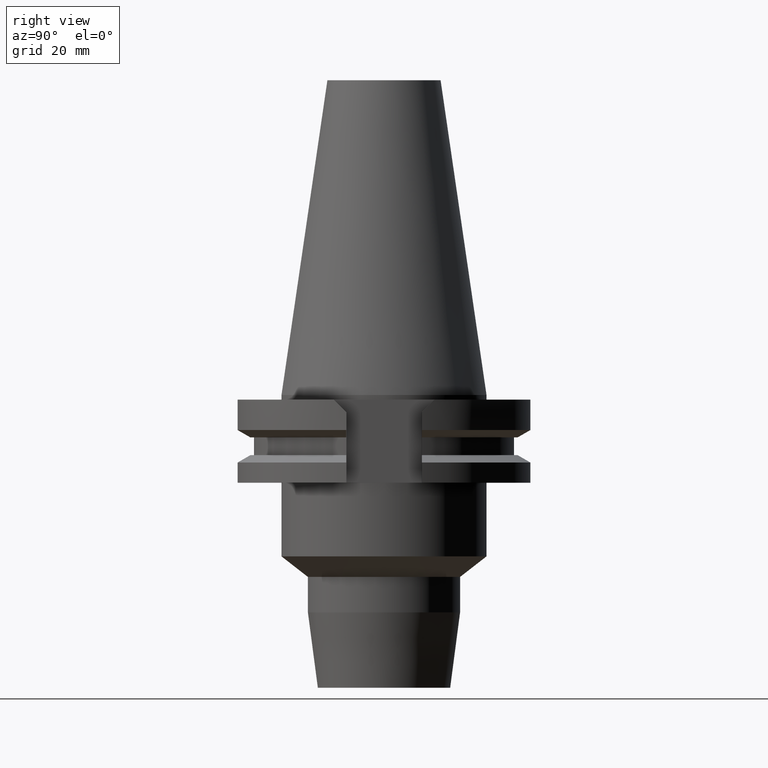
[diagram: clean part render]
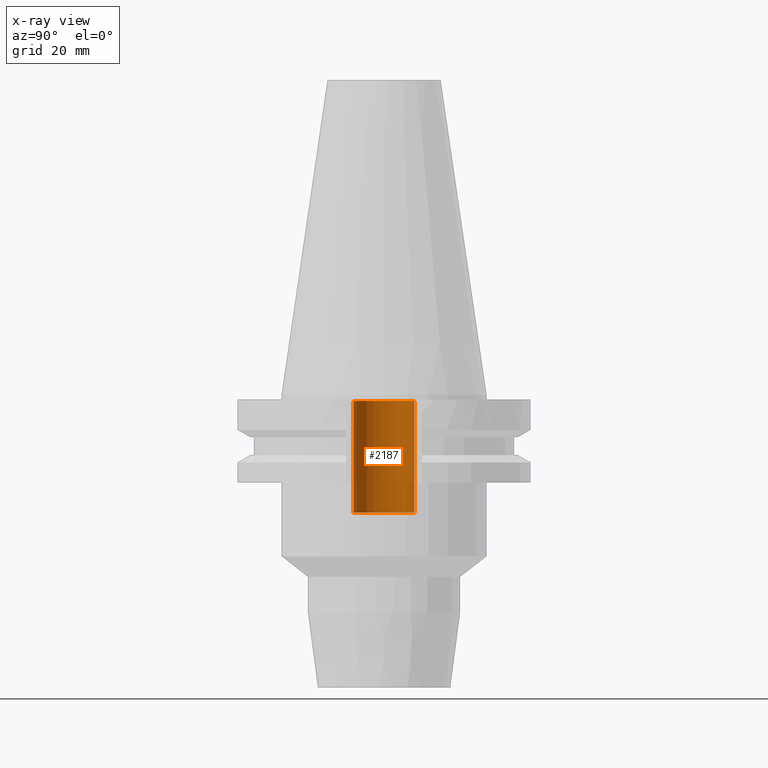
[diagram: x-ray — body ghosted, one internal face saturated and labeled with its STEP entity id]
A machine part, right view, then the same camera in x-ray: the body is ghosted and one INTERNAL B-rep face — a face not visible from any outside direction — is saturated and labeled: STEP entity #2187.
In plain terms, the highlighted cylindrical surface (edge-blend (fillet) strip) has radius 6.6 mm, axis along (0, 0, 1).
Its self-contained STEP definition (entity closure, byte-faithful):
#966=CARTESIAN_POINT('',(0.E0,0.E0,-2.55E1));
#967=DIRECTION('',(0.E0,0.E0,-1.E0));
#968=DIRECTION('',(0.E0,-1.E0,0.E0));
#969=AXIS2_PLACEMENT_3D('',#966,#967,#968);
#998=DIRECTION('',(0.E0,0.E0,1.E0));
#999=VECTOR('',#998,2.42E1);
#1000=CARTESIAN_POINT('',(0.E0,-6.6E0,-2.55E1));
#1001=LINE('',#1000,#999);
#1005=DIRECTION('',(0.E0,0.E0,1.E0));
#1006=VECTOR('',#1005,2.42E1);
#1007=CARTESIAN_POINT('',(0.E0,6.6E0,-2.55E1));
#1008=LINE('',#1007,#1006);
#1020=CARTESIAN_POINT('',(0.E0,0.E0,-1.3E0));
#1021=DIRECTION('',(0.E0,0.E0,1.E0));
#1022=DIRECTION('',(0.E0,1.E0,0.E0));
#1023=AXIS2_PLACEMENT_3D('',#1020,#1021,#1022);
#1296=CARTESIAN_POINT('',(0.E0,-6.6E0,-2.55E1));
#1297=CARTESIAN_POINT('',(0.E0,6.6E0,-2.55E1));
#1298=VERTEX_POINT('',#1296);
#1299=VERTEX_POINT('',#1297);
#1300=CARTESIAN_POINT('',(0.E0,6.6E0,-1.3E0));
#1301=VERTEX_POINT('',#1300);
#1302=CARTESIAN_POINT('',(0.E0,-6.6E0,-1.3E0));
#1303=VERTEX_POINT('',#1302);
#2173=CARTESIAN_POINT('',(0.E0,0.E0,-7.00875E1));
#2174=DIRECTION('',(0.E0,0.E0,1.E0));
#2175=DIRECTION('',(0.E0,1.E0,0.E0));
#2176=AXIS2_PLACEMENT_3D('',#2173,#2174,#2175);
#2177=CYLINDRICAL_SURFACE('',#2176,6.6E0);
#2179=ORIENTED_EDGE('',*,*,#2178,.F.);
#2180=ORIENTED_EDGE('',*,*,#2162,.F.);
#2182=ORIENTED_EDGE('',*,*,#2181,.T.);
#2184=ORIENTED_EDGE('',*,*,#2183,.F.);
#2185=EDGE_LOOP('',(#2179,#2180,#2182,#2184));
#2186=FACE_OUTER_BOUND('',#2185,.F.);
#970=CIRCLE('',#969,6.6E0);
#1024=CIRCLE('',#1023,6.6E0);
#2162=EDGE_CURVE('',#1298,#1299,#970,.T.);
#2178=EDGE_CURVE('',#1299,#1301,#1008,.T.);
#2181=EDGE_CURVE('',#1298,#1303,#1001,.T.);
#2183=EDGE_CURVE('',#1301,#1303,#1024,.T.);
#2187=ADVANCED_FACE('',(#2186),#2177,.F.);